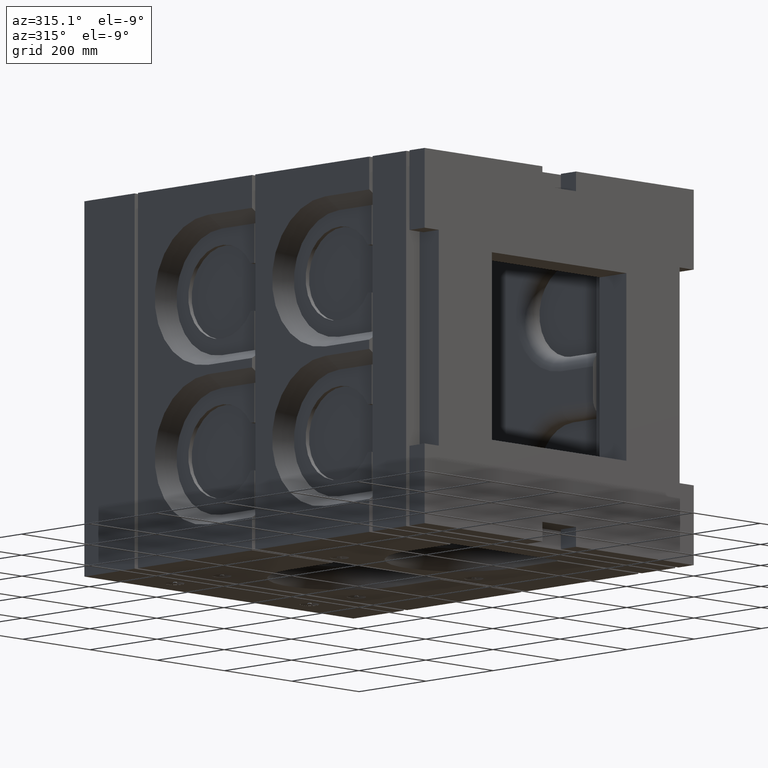
[diagram: clean part render]
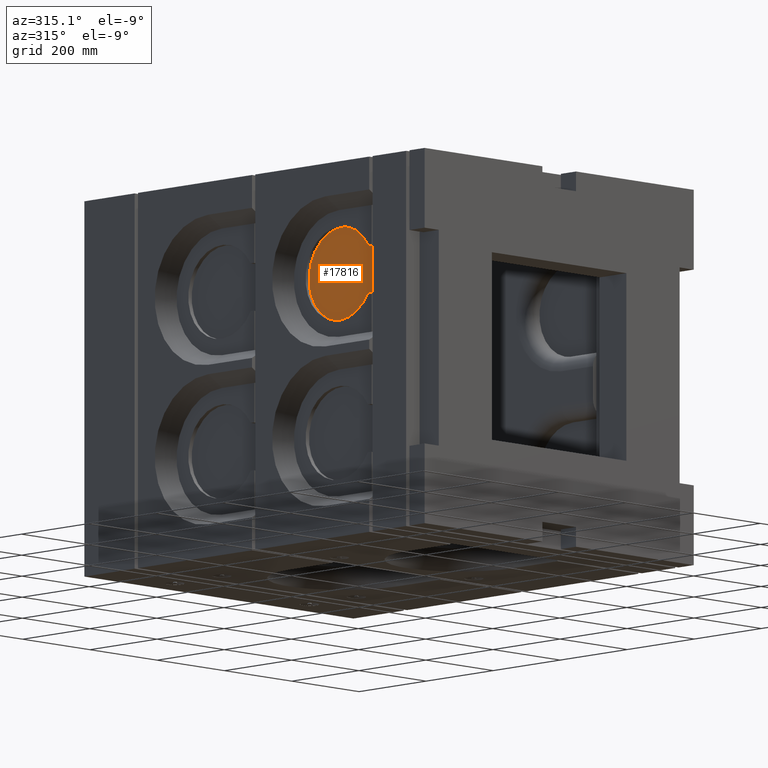
[diagram: same view with one face highlighted and labeled with its STEP entity id]
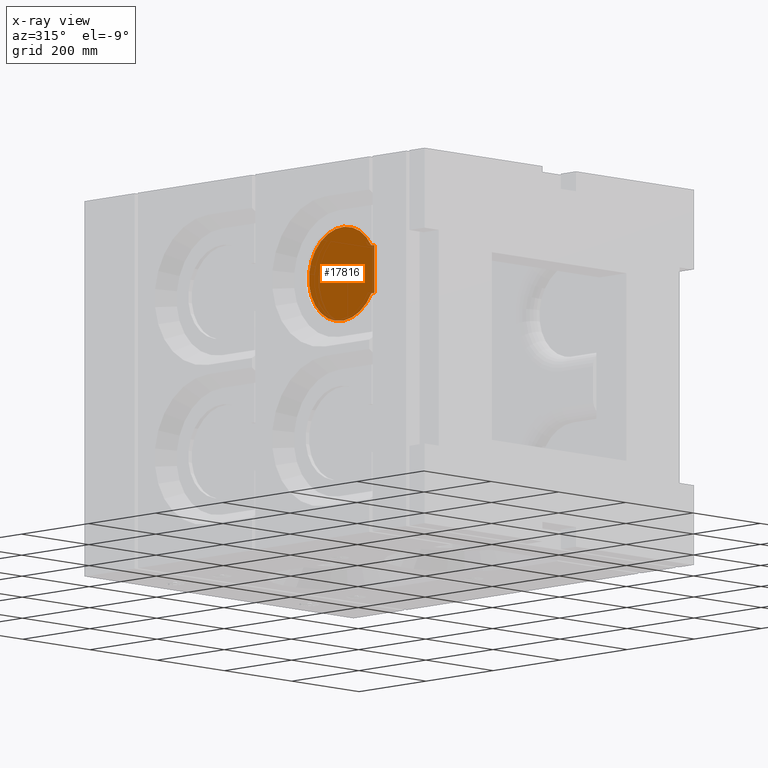
[diagram: x-ray of the same camera — body ghosted, the highlighted face saturated]
A machine part, auxiliary view. The second image highlights one B-rep face of the part: STEP entity #17816.
The next image is the same camera in x-ray: the body ghosted, the highlighted face saturated — about 0% of this face is hidden behind the body in this view.
In plain terms, the highlighted planar face has unit normal (-1, 0, 0).
Its self-contained STEP definition (entity closure, byte-faithful):
#1230 = DIRECTION ( 'NONE',  ( -1.000000000000000000, 0.0000000000000000000, 0.0000000000000000000 ) ) ;
#1726 = CARTESIAN_POINT ( 'NONE',  ( -350.0000000000000000, 199.9999999999999147, 220.9999999999999716 ) ) ;
#1940 = CARTESIAN_POINT ( 'NONE',  ( -350.0000000000000000, 199.9999999999999147, -361.9999999999999432 ) ) ;
#2816 = VECTOR ( 'NONE', #5796, 1000.000000000000000 ) ;
#3100 = DIRECTION ( 'NONE',  ( 0.0000000000000000000, 0.0000000000000000000, 1.000000000000000000 ) ) ;
#5796 = DIRECTION ( 'NONE',  ( 0.0000000000000000000, 1.000000000000000000, -3.700743415417188632E-16 ) ) ;
#6634 = VERTEX_POINT ( 'NONE', #10668 ) ;
#6640 = CARTESIAN_POINT ( 'NONE',  ( -350.0000000000000000, 208.9825599078883727, 220.9999999999999716 ) ) ;
#7287 = VECTOR ( 'NONE', #9186, 1000.000000000000000 ) ;
#7902 = ORIENTED_EDGE ( 'NONE', *, *, #19622, .T. ) ;
#8066 = VERTEX_POINT ( 'NONE', #6640 ) ;
#8278 = EDGE_CURVE ( 'NONE', #6634, #20197, #18701, .T. ) ;
#9094 = CARTESIAN_POINT ( 'NONE',  ( -350.0000000000000000, 208.9825599078883727, 119.0000000000000000 ) ) ;
#9186 = DIRECTION ( 'NONE',  ( 0.0000000000000000000, -1.000000000000000000, 0.0000000000000000000 ) ) ;
#9217 = ORIENTED_EDGE ( 'NONE', *, *, #15790, .T. ) ;
#9496 = ORIENTED_EDGE ( 'NONE', *, *, #24337, .T. ) ;
#9760 = CARTESIAN_POINT ( 'NONE',  ( -350.0000000000000000, 208.9825599078883727, 220.9999999999999716 ) ) ;
#10647 = VERTEX_POINT ( 'NONE', #1726 ) ;
#10668 = CARTESIAN_POINT ( 'NONE',  ( -350.0000000000000000, 208.9825599078883727, 119.0000000000000000 ) ) ;
#11056 = ORIENTED_EDGE ( 'NONE', *, *, #8278, .T. ) ;
#14876 = LINE ( 'NONE', #9760, #2816 ) ;
#15790 = EDGE_CURVE ( 'NONE', #8066, #6634, #25056, .T. ) ;
#16149 = DIRECTION ( 'NONE',  ( 0.0000000000000000000, 0.0000000000000000000, 1.000000000000000000 ) ) ;
#17128 = DIRECTION ( 'NONE',  ( 0.0000000000000000000, 0.0000000000000000000, 1.000000000000000000 ) ) ;
#17215 = CARTESIAN_POINT ( 'NONE',  ( -350.0000000000000000, 294.9999999999999432, 169.9999999999999716 ) ) ;
#17816 = ADVANCED_FACE ( 'NONE', ( #19178 ), #21362, .T. ) ;
#18038 = VECTOR ( 'NONE', #16149, 1000.000000000000000 ) ;
#18701 = LINE ( 'NONE', #9094, #7287 ) ;
#18921 = AXIS2_PLACEMENT_3D ( 'NONE', #25462, #25375, #3100 ) ;
#19178 = FACE_OUTER_BOUND ( 'NONE', #23661, .T. ) ;
#19622 = EDGE_CURVE ( 'NONE', #20197, #10647, #20959, .T. ) ;
#20197 = VERTEX_POINT ( 'NONE', #24905 ) ;
#20959 = LINE ( 'NONE', #1940, #18038 ) ;
#21362 = PLANE ( 'NONE',  #21563 ) ;
#21563 = AXIS2_PLACEMENT_3D ( 'NONE', #17215, #1230, #17128 ) ;
#23661 = EDGE_LOOP ( 'NONE', ( #7902, #9496, #9217, #11056 ) ) ;
#24337 = EDGE_CURVE ( 'NONE', #10647, #8066, #14876, .T. ) ;
#24905 = CARTESIAN_POINT ( 'NONE',  ( -350.0000000000000000, 199.9999999999999147, 119.0000000000000000 ) ) ;
#25056 = CIRCLE ( 'NONE', #18921, 100.0000000000000284 ) ;
#25375 = DIRECTION ( 'NONE',  ( -1.000000000000000000, 0.0000000000000000000, 0.0000000000000000000 ) ) ;
#25462 = CARTESIAN_POINT ( 'NONE',  ( -350.0000000000000000, 294.9999999999999432, 169.9999999999999716 ) ) ;